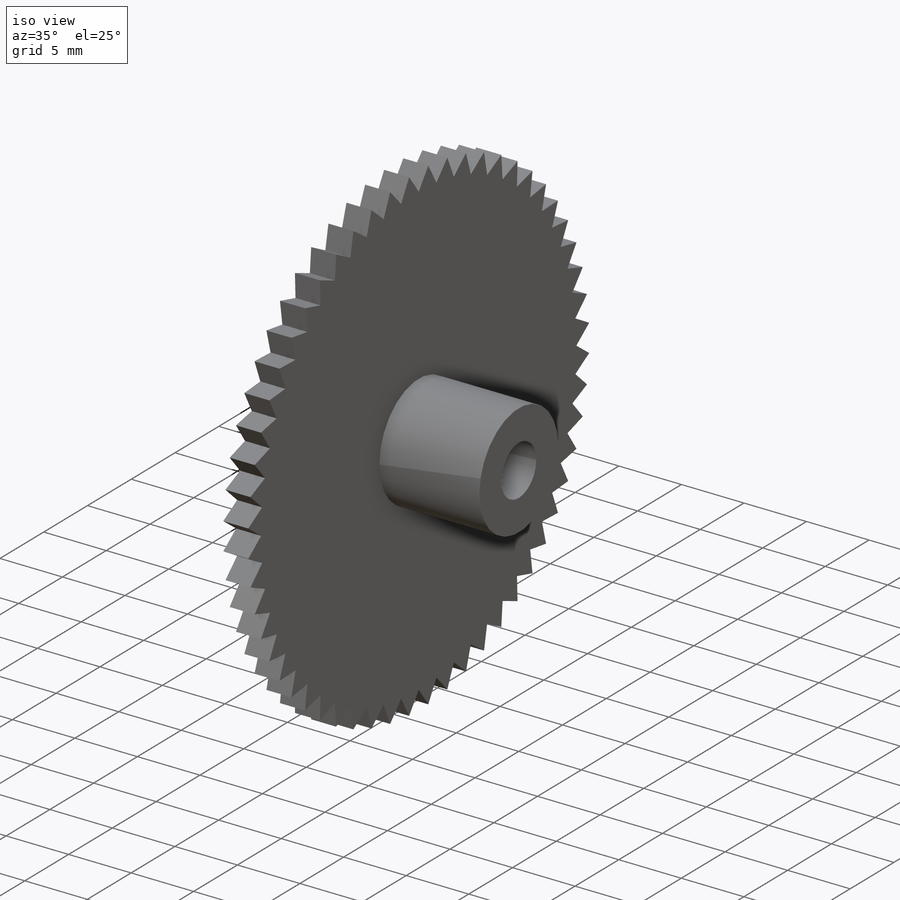
[diagram: iso view]
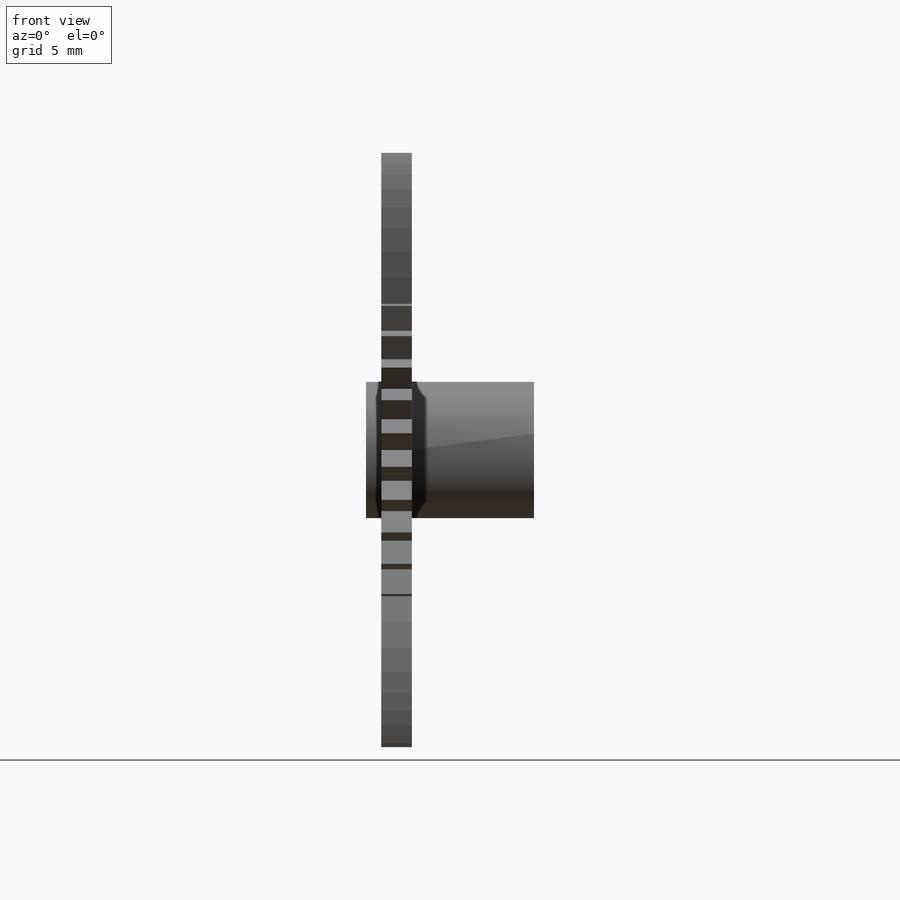
[diagram: front view]
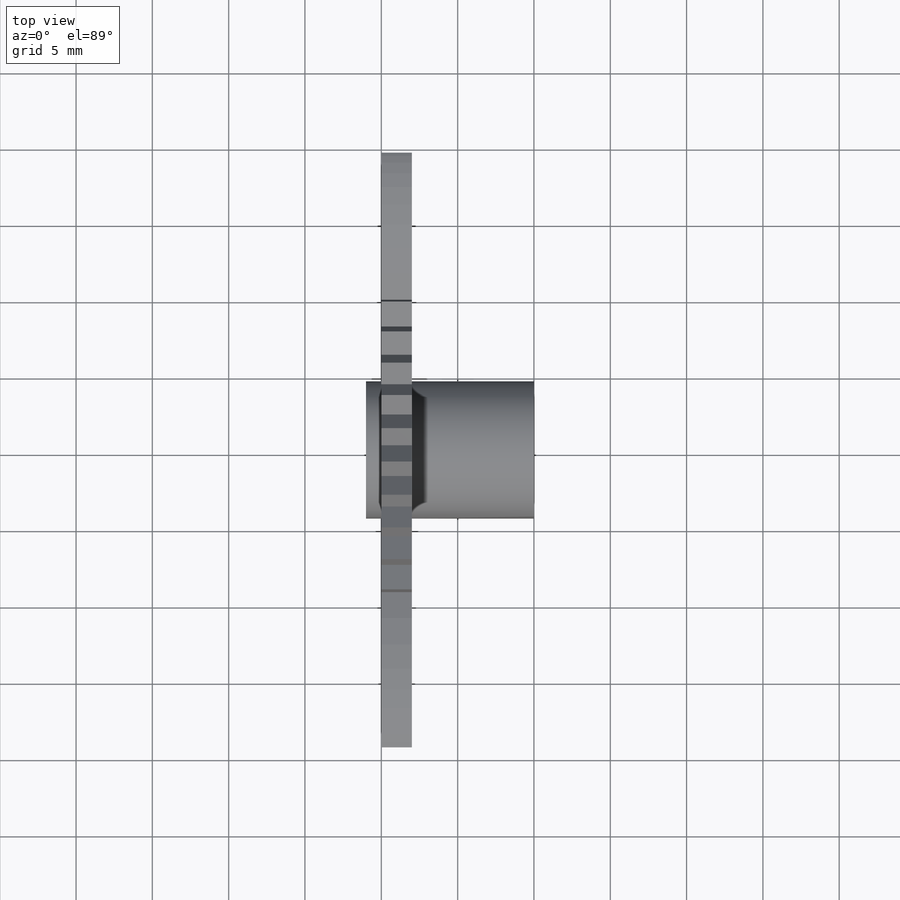
[diagram: top view]
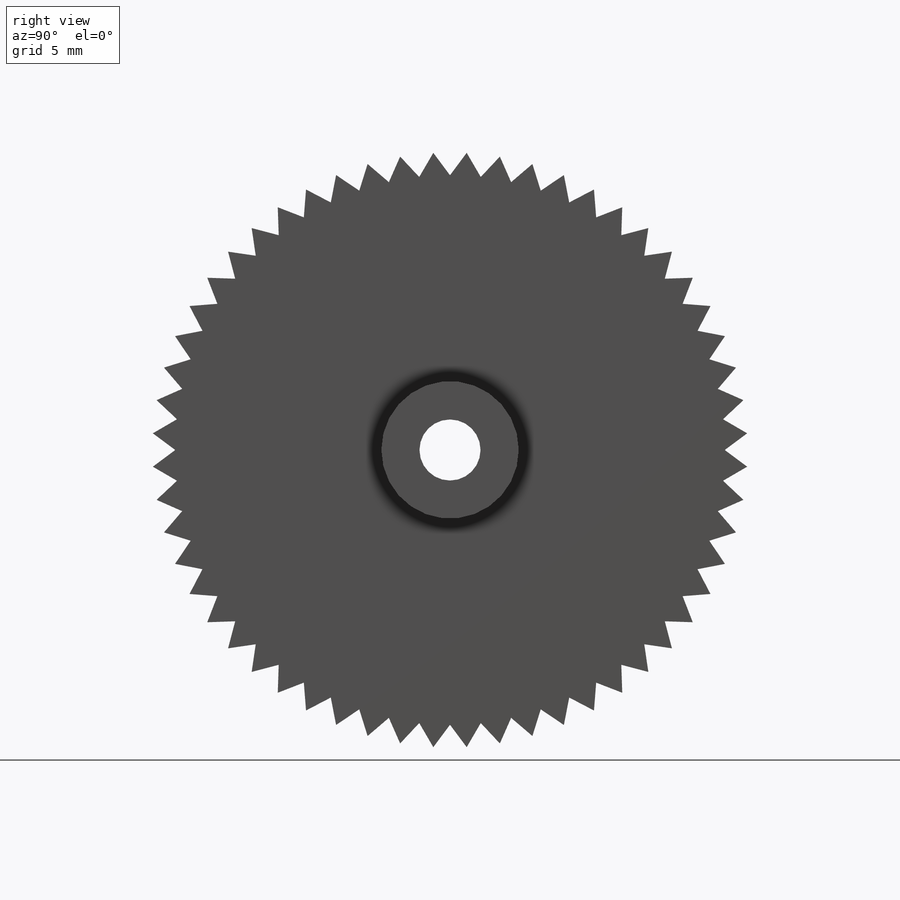
[diagram: right view]
SOLIDWORKS PART (.sldprt)
format: sldprt  version: not decoded by parser v0  size: 234,496 bytes
history: native  units: mm
features: sketch x5, extrude x3, cut_extrude x2, material x1, pattern_circular x1 (+12 scaffold rows collapsed)
feature tree (24):
  scaffold x12  (default folders/planes/origin — collapsed)
  material  "Material <not specified>"
  sketch  "Sketch1"  dims[D1=39.0mm]
  extrude  "Boss-Extrude1"  Depth=2mm
  sketch  "Sketch2"  dims[D1=9.0mm]
  extrude  "Boss-Extrude2"  Depth=8mm
  sketch  "Sketch3"  dims[D1=9.0mm]
  extrude  "Boss-Extrude3"  Depth=1mm
  sketch  "Sketch4"  dims[D1=4.0mm]
  cut_extrude  "Cut-Extrude1"  Depth=11mm
  sketch  "Sketch5"  dims[c1.D1=~86.785714deg c2.D1=1.5mm]
  cut_extrude  "Cut-Extrude5"  Depth=2mm
  pattern_circular  "CirPattern1"  Count=56 Angle=360deg
decode coverage: 11 of 11 modeling features carry decoded parameters
note: ~ marks probable driven/reference dimensions
note: suppression state not decoded; provenance and decode notes live in map.json
